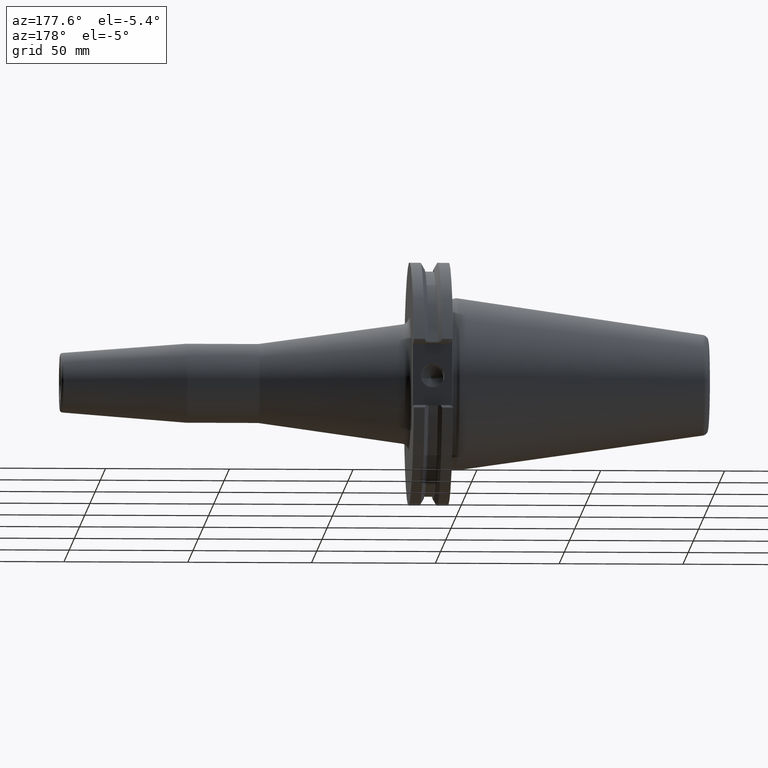
[diagram: clean part render]
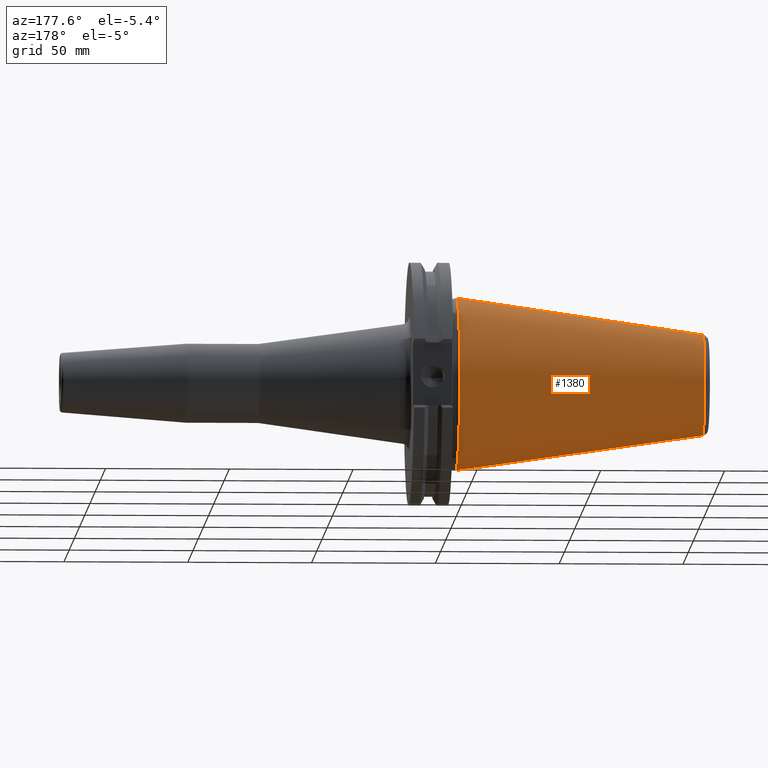
[diagram: same view with one face highlighted and labeled with its STEP entity id]
A machine part, auxiliary view. The second image highlights one B-rep face of the part: STEP entity #1380.
In plain terms, the highlighted conical surface has half-angle 8.297 deg.
Its self-contained STEP definition (entity closure, byte-faithful):
#2=CARTESIAN_POINT('',(-2.842170943040E-14,0.E0,0.E0));
#3=DIRECTION('',(1.E0,0.E0,0.E0));
#4=DIRECTION('',(0.E0,0.E0,-1.E0));
#5=AXIS2_PLACEMENT_3D('',#2,#3,#4);
#7=CARTESIAN_POINT('',(-9.961076723398E1,0.E0,0.E0));
#8=DIRECTION('',(-1.E0,0.E0,0.E0));
#9=DIRECTION('',(0.E0,0.E0,1.E0));
#10=AXIS2_PLACEMENT_3D('',#7,#8,#9);
#25=DIRECTION('',(-9.895329809878E-1,-2.393781456249E-10,1.443068935894E-1));
#26=VECTOR('',#25,1.006644236712E2);
#27=CARTESIAN_POINT('',(8.037375209824E-10,2.476718367343E-8,
-3.492499999978E1));
#28=LINE('',#27,#26);
#34=DIRECTION('',(-9.895329809878E-1,2.393781965724E-10,-1.443068935894E-1));
#35=VECTOR('',#34,1.006644236712E2);
#36=CARTESIAN_POINT('',(8.037375209824E-10,-2.476719314581E-8,
3.492499999978E1));
#37=LINE('',#36,#35);
#1143=CARTESIAN_POINT('',(-9.961076723398E1,0.E0,-2.039842972482E1));
#1144=CARTESIAN_POINT('',(-9.961076723398E1,0.E0,2.039842972482E1));
#1145=VERTEX_POINT('',#1143);
#1146=VERTEX_POINT('',#1144);
#1147=CARTESIAN_POINT('',(6.536993168993E-13,0.E0,3.4925E1));
#1148=CARTESIAN_POINT('',(6.536993168993E-13,0.E0,-3.4925E1));
#1149=VERTEX_POINT('',#1147);
#1150=VERTEX_POINT('',#1148);
#1365=CARTESIAN_POINT('',(-4.980538361699E1,0.E0,0.E0));
#1366=DIRECTION('',(1.E0,0.E0,0.E0));
#1367=DIRECTION('',(0.E0,0.E0,1.E0));
#1368=AXIS2_PLACEMENT_3D('',#1365,#1366,#1367);
#1369=CONICAL_SURFACE('',#1368,2.766171486241E1,8.297145E0);
#1371=ORIENTED_EDGE('',*,*,#1370,.T.);
#1373=ORIENTED_EDGE('',*,*,#1372,.T.);
#1375=ORIENTED_EDGE('',*,*,#1374,.T.);
#1377=ORIENTED_EDGE('',*,*,#1376,.F.);
#1378=EDGE_LOOP('',(#1371,#1373,#1375,#1377));
#1379=FACE_OUTER_BOUND('',#1378,.F.);
#1380=ADVANCED_FACE('',(#1379),#1369,.T.);
#6=CIRCLE('',#5,3.4925E1);
#11=CIRCLE('',#10,2.039842972482E1);
#1370=EDGE_CURVE('',#1150,#1149,#6,.T.);
#1372=EDGE_CURVE('',#1149,#1146,#37,.T.);
#1374=EDGE_CURVE('',#1146,#1145,#11,.T.);
#1376=EDGE_CURVE('',#1150,#1145,#28,.T.);